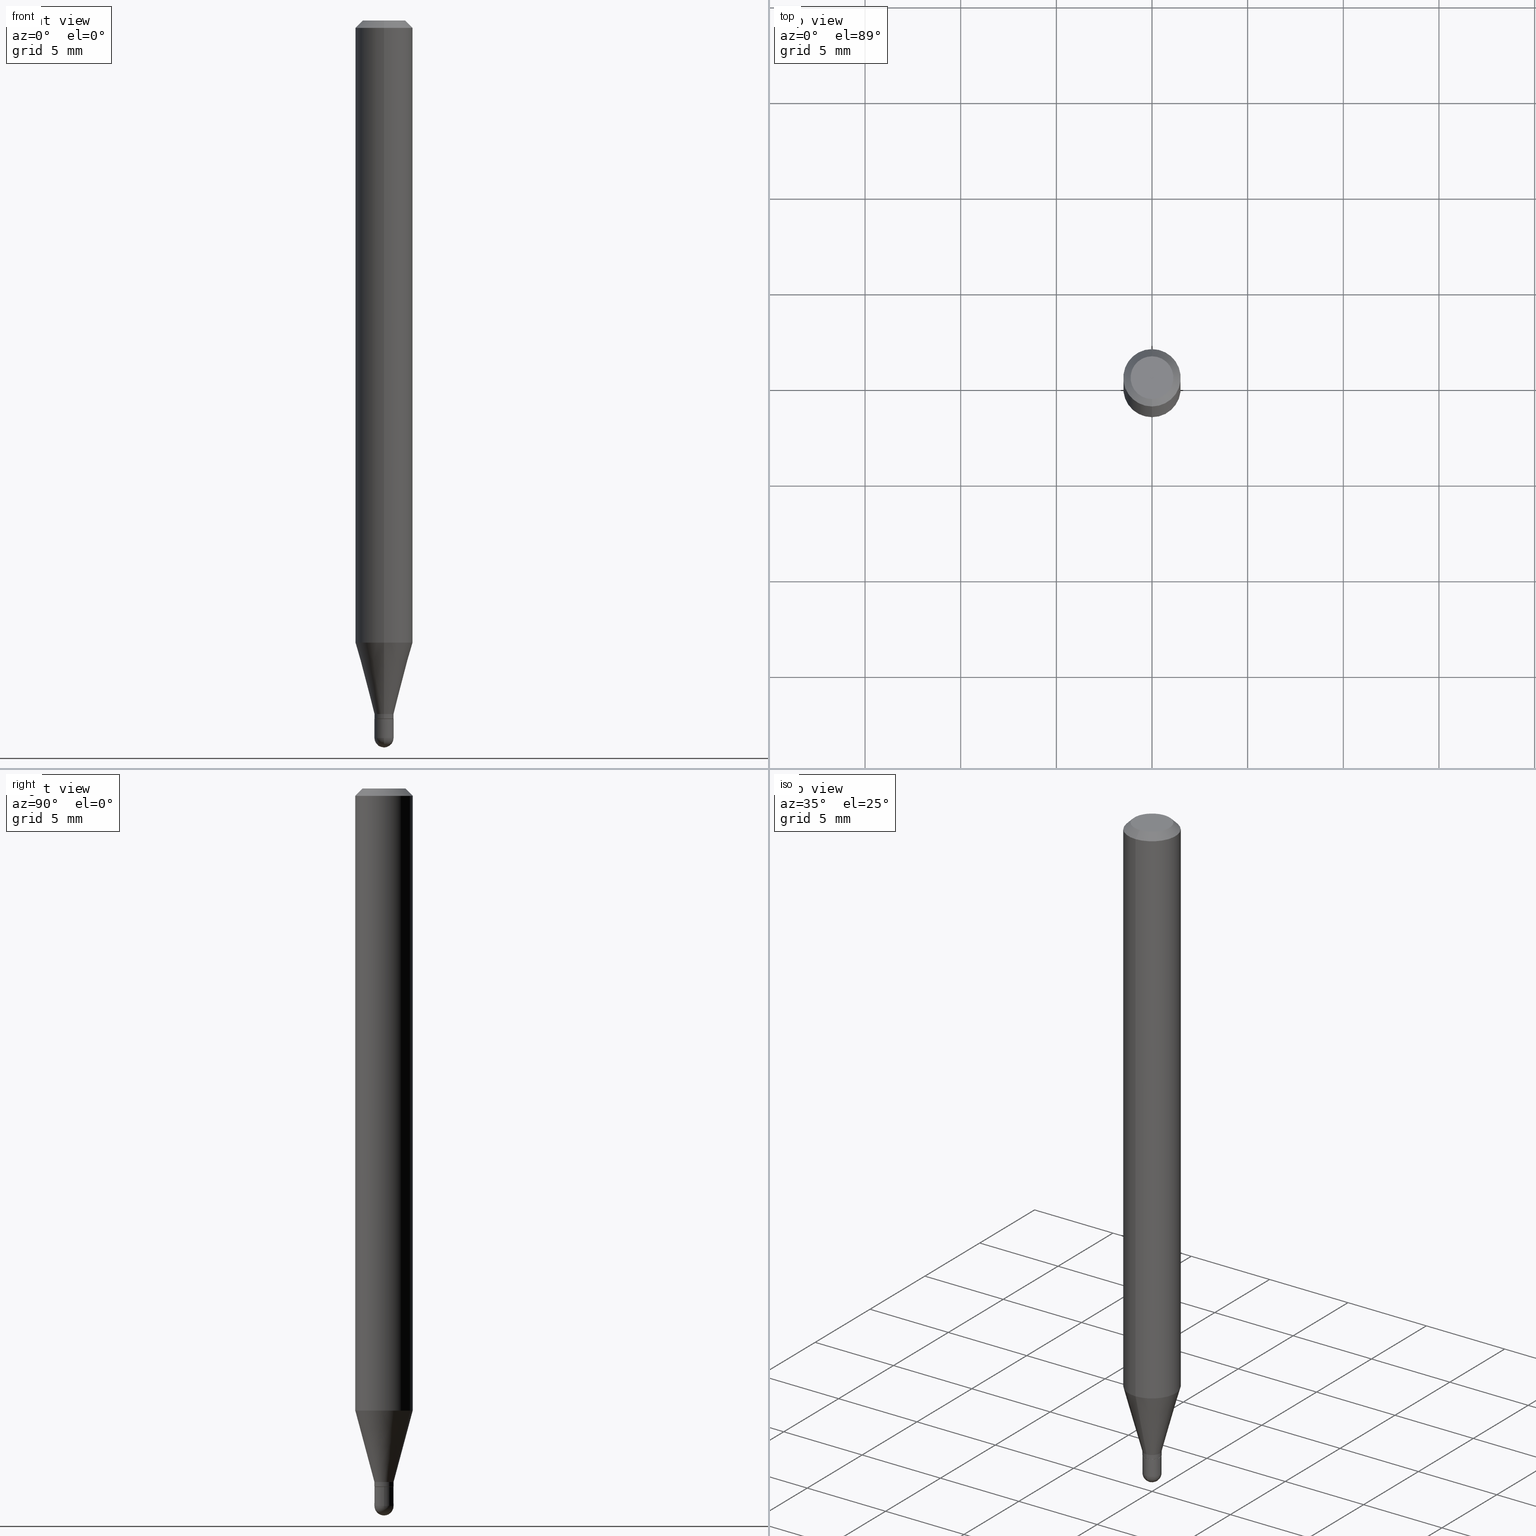
[diagram: canonical four-view strip — front | top / right | iso, engineering-drawing reading convention]
A machine part, canonical four-view strip (front | top / right | iso — engineering-drawing reading convention). The complete STEP part file that produces these views, byte-faithful:
ISO-10303-21;
HEADER;
FILE_DESCRIPTION (( 'STEP AP203' ),
    '1' );
FILE_NAME ('01905.STEP',
    '2024-03-07T19:42:53',
    ( '' ),
    ( '' ),
    'SwSTEP 2.0',
    'SolidWorks 2023',
    '' );
FILE_SCHEMA (( 'CONFIG_CONTROL_DESIGN' ));
ENDSEC;

DATA;
#1 = EDGE_LOOP ( 'NONE', ( #247, #274, #31, #37 ) ) ;
#2 = DIRECTION ( 'NONE',  ( 7.105427357601000281E-15, 1.000000000000000000, 0.000000000000000000 ) ) ;
#3 = PERSON_AND_ORGANIZATION ( #13, #121 ) ;
#4 = CARTESIAN_POINT ( 'NONE',  ( -1.375643647503839622E-16, -0.01970000000000490109, -1.427099999999999591 ) ) ;
#5 = ORIENTED_EDGE ( 'NONE', *, *, #262, .F. ) ;
#6 = SPHERICAL_SURFACE ( 'NONE', #258, 0.01969999999999989468 ) ;
#7 = CARTESIAN_POINT ( 'NONE',  ( 3.608805467862051881E-29, -5.157235602862340147E-15, -1.476399999999999935 ) ) ;
#8 = DATE_TIME_ROLE ( 'classification_date' ) ;
#9 = CARTESIAN_POINT ( 'NONE',  ( -1.375643647503830007E-16, -0.01970000000000510232, -1.476399999999999935 ) ) ;
#10 =( NAMED_UNIT ( * ) PLANE_ANGLE_UNIT ( ) SI_UNIT ( $, .RADIAN. ) );
#11 = EDGE_CURVE ( 'NONE', #199, #497, #327, .T. ) ;
#12 = FACE_OUTER_BOUND ( 'NONE', #194, .T. ) ;
#13 = PERSON ( 'UNSPECIFIED', 'UNSPECIFIED', 'UNSPECIFIED', ('UNSPECIFIED'), ('UNSPECIFIED'), ('UNSPECIFIED') ) ;
#14 = VECTOR ( 'NONE', #234, 39.37007874015748143 ) ;
#15 = DIRECTION ( 'NONE',  ( -2.445463937924498510E-29, 3.491488310469463520E-15, 1.000000000000000000 ) ) ;
#16 = ADVANCED_FACE ( 'NONE', ( #283 ), #227, .T. ) ;
#17 = CARTESIAN_POINT ( 'NONE',  ( 1.399769189447391362E-16, 0.01969999999999991896, -6.878231971624814427E-17 ) ) ;
#18 = PERSON_AND_ORGANIZATION_ROLE ( 'design_owner' ) ;
#19 = FACE_OUTER_BOUND ( 'NONE', #429, .T. ) ;
#20 = CC_DESIGN_PERSON_AND_ORGANIZATION_ASSIGNMENT ( #73, #173, ( #442 ) ) ;
#21 = FACE_OUTER_BOUND ( 'NONE', #356, .T. ) ;
#22 = CONICAL_SURFACE ( 'NONE', #355, 0.01969999999999991896, 0.2617993877991505736 ) ;
#23 = DIRECTION ( 'NONE',  ( -2.445468806185136597E-29, 3.491481338843145583E-15, 1.000000000000000000 ) ) ;
#24 = AXIS2_PLACEMENT_3D ( 'NONE', #377, #89, #178 ) ;
#25 = CALENDAR_DATE ( 2024, 7, 3 ) ;
#26 = FACE_OUTER_BOUND ( 'NONE', #499, .T. ) ;
#27 = CIRCLE ( 'NONE', #340, 0.01969999999999991896 ) ;
#28 = ORIENTED_EDGE ( 'NONE', *, *, #304, .F. ) ;
#29 = ORIENTED_EDGE ( 'NONE', *, *, #102, .T. ) ;
#30 = ORIENTED_EDGE ( 'NONE', *, *, #32, .F. ) ;
#31 = ORIENTED_EDGE ( 'NONE', *, *, #157, .T. ) ;
#32 = EDGE_CURVE ( 'NONE', #510, #403, #85, .T. ) ;
#33 = ORIENTED_EDGE ( 'NONE', *, *, #318, .T. ) ;
#34 = AXIS2_PLACEMENT_3D ( 'NONE', #135, #128, #448 ) ;
#35 = ORIENTED_EDGE ( 'NONE', *, *, #218, .T. ) ;
#36 = EDGE_LOOP ( 'NONE', ( #465, #29, #381, #28 ) ) ;
#37 = ORIENTED_EDGE ( 'NONE', *, *, #162, .F. ) ;
#38 = DIRECTION ( 'NONE',  ( -2.445468806185136877E-29, 3.491481338843145188E-15, 1.000000000000000000 ) ) ;
#39 = ADVANCED_FACE ( 'NONE', ( #160 ), #143, .T. ) ;
#40 = ORIENTED_EDGE ( 'NONE', *, *, #11, .F. ) ;
#41 = DATE_AND_TIME ( #370, #468 ) ;
#42 = DIRECTION ( 'NONE',  ( -6.982962677686265922E-15, -1.000000000000000000, 0.000000000000000000 ) ) ;
#43 = AXIS2_PLACEMENT_3D ( 'NONE', #487, #326, #88 ) ;
#44 = COORDINATED_UNIVERSAL_TIME_OFFSET ( 5, 0, .BEHIND. ) ;
#45 = CARTESIAN_POINT ( 'NONE',  ( 3.130790046417451577E-29, -4.469956264772435367E-15, -1.280243800722164815 ) ) ;
#46 = CARTESIAN_POINT ( 'NONE',  ( -0.01969999999999999876, -4.946063947348069559E-15, -1.476399999999999935 ) ) ;
#47 = CARTESIAN_POINT ( 'NONE',  ( 3.668195906886753511E-31, -5.237232465704203883E-17, -0.01500000000000002373 ) ) ;
#48 = ADVANCED_FACE ( 'NONE', ( #299 ), #449, .T. ) ;
#49 =( CONVERSION_BASED_UNIT ( 'INCH', #410 ) LENGTH_UNIT ( ) NAMED_UNIT ( #224 ) );
#50 = PERSON_AND_ORGANIZATION ( #13, #121 ) ;
#51 = DIRECTION ( 'NONE',  ( 1.000000000000000000, -6.982962677686265922E-15, 4.876176775795935232E-29 ) ) ;
#52 = AXIS2_PLACEMENT_3D ( 'NONE', #284, #364, #86 ) ;
#53 = VECTOR ( 'NONE', #94, 39.37007874015748143 ) ;
#54 = CC_DESIGN_PERSON_AND_ORGANIZATION_ASSIGNMENT ( #83, #186, ( #230 ) ) ;
#55 = LINE ( 'NONE', #174, #414 ) ;
#56 = CARTESIAN_POINT ( 'NONE',  ( 3.610490145451735091E-29, -5.154823048668019264E-15, -1.476399999999999935 ) ) ;
#57 = DIRECTION ( 'NONE',  ( 2.445463937924498510E-29, -3.491488310469463520E-15, -1.000000000000000000 ) ) ;
#58 = CARTESIAN_POINT ( 'NONE',  ( 3.668195906886753511E-31, -5.237232465704203883E-17, -0.01500000000000002373 ) ) ;
#59 = AXIS2_PLACEMENT_3D ( 'NONE', #257, #342, #488 ) ;
#60 = PLANE ( 'NONE',  #97 ) ;
#61 = ORIENTED_EDGE ( 'NONE', *, *, #147, .F. ) ;
#62 = CARTESIAN_POINT ( 'NONE',  ( 3.075995059520799729E-16, 0.04404999999999999888, -1.657310279668033086E-16 ) ) ;
#63 = EDGE_CURVE ( 'NONE', #497, #393, #344, .T. ) ;
#64 = VERTEX_POINT ( 'NONE', #138 ) ;
#65 = ORIENTED_EDGE ( 'NONE', *, *, #90, .F. ) ;
#66 = SECURITY_CLASSIFICATION ( '', '', #366 ) ;
#67 = ORIENTED_EDGE ( 'NONE', *, *, #343, .T. ) ;
#68 = PRODUCT_DEFINITION_SHAPE ( 'NONE', 'NONE',  #230 ) ;
#69 = VECTOR ( 'NONE', #91, 39.37007874015748143 ) ;
#70 = LOCAL_TIME ( 14, 42, 53.00000000000000000, #504 ) ;
#71 = DATE_AND_TIME ( #288, #70 ) ;
#72 = DIRECTION ( 'NONE',  ( 1.000000000000000000, -7.105427357601001070E-15, 4.926315508542082329E-29 ) ) ;
#73 = PERSON_AND_ORGANIZATION ( #13, #121 ) ;
#74 = CARTESIAN_POINT ( 'NONE',  ( 0.000000000000000000, 0.000000000000000000, 0.000000000000000000 ) ) ;
#75 = VERTEX_POINT ( 'NONE', #231 ) ;
#76 = CARTESIAN_POINT ( 'NONE',  ( 1.399769189447754238E-16, 0.01969999999999479112, -1.476399999999999935 ) ) ;
#77 = COORDINATED_UNIVERSAL_TIME_OFFSET ( 5, 0, .BEHIND. ) ;
#78 = CARTESIAN_POINT ( 'NONE',  ( 3.130790046417451577E-29, -4.469956264772435367E-15, -1.280243800722164815 ) ) ;
#79 = ADVANCED_FACE ( 'NONE', ( #303 ), #266, .T. ) ;
#80 = CONICAL_SURFACE ( 'NONE', #175, 0.05904999999999999832, 0.7853981633974483900 ) ;
#81 =( LENGTH_UNIT ( ) NAMED_UNIT ( * ) SI_UNIT ( $, .METRE. ) );
#82 = DIRECTION ( 'NONE',  ( -2.445463937924498510E-29, 3.491488310469463520E-15, 1.000000000000000000 ) ) ;
#83 = PERSON_AND_ORGANIZATION ( #13, #121 ) ;
#84 = ADVANCED_FACE ( 'NONE', ( #21 ), #60, .F. ) ;
#85 = LINE ( 'NONE', #17, #401 ) ;
#86 = DIRECTION ( 'NONE',  ( -6.982962677686266711E-15, -1.000000000000000000, 0.000000000000000000 ) ) ;
#87 = DIRECTION ( 'NONE',  ( -2.445463937924498510E-29, 3.491488310469463520E-15, 1.000000000000000000 ) ) ;
#88 = DIRECTION ( 'NONE',  ( -6.982962677686266711E-15, -1.000000000000000000, 0.000000000000000000 ) ) ;
#89 = DIRECTION ( 'NONE',  ( -2.445468806185136597E-29, 3.491481338843145583E-15, 1.000000000000000000 ) ) ;
#90 = EDGE_CURVE ( 'NONE', #155, #118, #493, .T. ) ;
#91 = DIRECTION ( 'NONE',  ( -4.851104656540964275E-15, -0.7071067811865500152, -0.7071067811865450192 ) ) ;
#92 = SHAPE_DEFINITION_REPRESENTATION ( #68, #190 ) ;
#93 = DIRECTION ( 'NONE',  ( -2.445463937924498510E-29, 3.491488310469463520E-15, 1.000000000000000000 ) ) ;
#94 = DIRECTION ( 'NONE',  ( -2.445468806185136877E-29, 3.491481338843145188E-15, 1.000000000000000000 ) ) ;
#95 = AXIS2_PLACEMENT_3D ( 'NONE', #161, #360, #320 ) ;
#96 = APPROVAL_ROLE ( '' ) ;
#97 = AXIS2_PLACEMENT_3D ( 'NONE', #111, #424, #298 ) ;
#98 = DIRECTION ( 'NONE',  ( -2.445463937924498230E-29, 3.491488310469463914E-15, 1.000000000000000000 ) ) ;
#99 = DIRECTION ( 'NONE',  ( -2.445463937924498510E-29, 3.491488310469463520E-15, 1.000000000000000000 ) ) ;
#100 = DATE_AND_TIME ( #25, #132 ) ;
#101 = CARTESIAN_POINT ( 'NONE',  ( 1.399769189447740433E-16, 0.01969999999999494031, -1.427099999999999591 ) ) ;
#102 = EDGE_CURVE ( 'NONE', #282, #199, #480, .T. ) ;
#103 = CARTESIAN_POINT ( 'NONE',  ( -1.340728834115411522E-16, -0.01920000000000501514, -1.437000000000000055 ) ) ;
#104 = ADVANCED_FACE ( 'NONE', ( #345 ), #6, .T. ) ;
#105 = AXIS2_PLACEMENT_3D ( 'NONE', #411, #415, #222 ) ;
#106 = DIRECTION ( 'NONE',  ( 1.000000000000000000, 0.000000000000000000, 0.000000000000000000 ) ) ;
#107 = ORIENTED_EDGE ( 'NONE', *, *, #191, .F. ) ;
#108 = AXIS2_PLACEMENT_3D ( 'NONE', #139, #232, #106 ) ;
#109 = ADVANCED_FACE ( 'NONE', ( #141 ), #22, .T. ) ;
#110 = ORIENTED_EDGE ( 'NONE', *, *, #398, .F. ) ;
#111 = CARTESIAN_POINT ( 'NONE',  ( 1.375643647504545652E-16, 0.01969999999999498194, -1.437000000000000055 ) ) ;
#112 = APPROVAL ( #167, 'UNSPECIFIED' ) ;
#113 = AXIS2_PLACEMENT_3D ( 'NONE', #434, #437, #263 ) ;
#114 = ORIENTED_EDGE ( 'NONE', *, *, #402, .T. ) ;
#115 = PRODUCT ( '01905', '01905', '', ( #228 ) ) ;
#116 = ORIENTED_EDGE ( 'NONE', *, *, #63, .T. ) ;
#117 = LINE ( 'NONE', #368, #309 ) ;
#118 = VERTEX_POINT ( 'NONE', #477 ) ;
#119 = ORIENTED_EDGE ( 'NONE', *, *, #248, .F. ) ;
#120 = VECTOR ( 'NONE', #182, 39.37007874015748143 ) ;
#121 = ORGANIZATION ( 'UNSPECIFIED', 'UNSPECIFIED', '' ) ;
#122 = ADVANCED_FACE ( 'NONE', ( #484 ), #217, .T. ) ;
#123 = VERTEX_POINT ( 'NONE', #273 ) ;
#124 = FACE_OUTER_BOUND ( 'NONE', #208, .T. ) ;
#125 = DIRECTION ( 'NONE',  ( -6.982962677686265922E-15, -1.000000000000000000, 3.505890868245046092E-15 ) ) ;
#126 = DIRECTION ( 'NONE',  ( -2.445463937924498510E-29, 3.491488310469463520E-15, 1.000000000000000000 ) ) ;
#127 = DIRECTION ( 'NONE',  ( -2.445463937924498510E-29, 3.491488310469463520E-15, 1.000000000000000000 ) ) ;
#128 = DIRECTION ( 'NONE',  ( -2.445463937924498510E-29, 3.491488310469463520E-15, 1.000000000000000000 ) ) ;
#129 = DIRECTION ( 'NONE',  ( -6.982962677686265922E-15, -1.000000000000000000, 0.000000000000000000 ) ) ;
#130 = DIRECTION ( 'NONE',  ( -6.982962677686265922E-15, -1.000000000000000000, 4.626330217890369336E-15 ) ) ;
#131 = VECTOR ( 'NONE', #140, 39.37007874015748143 ) ;
#132 = LOCAL_TIME ( 14, 42, 53.00000000000000000, #142 ) ;
#133 = AXIS2_PLACEMENT_3D ( 'NONE', #483, #450, #168 ) ;
#134 = DIRECTION ( 'NONE',  ( -2.445468806185136597E-29, 3.491481338843145583E-15, 1.000000000000000000 ) ) ;
#135 = CARTESIAN_POINT ( 'NONE',  ( 0.000000000000000000, 0.000000000000000000, 0.000000000000000000 ) ) ;
#136 = APPROVAL ( #408, 'UNSPECIFIED' ) ;
#137 = DIRECTION ( 'NONE',  ( -2.445463937924498510E-29, 3.491488310469463520E-15, 1.000000000000000000 ) ) ;
#138 = CARTESIAN_POINT ( 'NONE',  ( 4.195754854663702092E-16, 0.05904999999999550886, -1.280243800722165037 ) ) ;
#139 = CARTESIAN_POINT ( 'NONE',  ( 0.000000000000000000, 0.000000000000000000, 0.000000000000000000 ) ) ;
#140 = DIRECTION ( 'NONE',  ( -2.445463937924498230E-29, 3.491488310469463914E-15, 1.000000000000000000 ) ) ;
#141 = FACE_OUTER_BOUND ( 'NONE', #315, .T. ) ;
#142 = COORDINATED_UNIVERSAL_TIME_OFFSET ( 5, 0, .BEHIND. ) ;
#143 = CONICAL_SURFACE ( 'NONE', #426, 0.05904999999999999832, 0.7853981633974483900 ) ;
#144 = DIRECTION ( 'NONE',  ( -6.982962677686266711E-15, -1.000000000000000000, 0.000000000000000000 ) ) ;
#145 = APPLICATION_CONTEXT ( 'configuration controlled 3d designs of mechanical parts and assemblies' ) ;
#146 = PERSON_AND_ORGANIZATION ( #13, #121 ) ;
#147 = EDGE_CURVE ( 'NONE', #118, #389, #496, .T. ) ;
#148 = DESIGN_CONTEXT ( 'detailed design', #145, 'design' ) ;
#149 = AXIS2_PLACEMENT_3D ( 'NONE', #153, #269, #349 ) ;
#150 = EDGE_LOOP ( 'NONE', ( #354, #388, #433, #40 ) ) ;
#151 = CC_DESIGN_APPROVAL ( #136, ( #66 ) ) ;
#152 = CARTESIAN_POINT ( 'NONE',  ( -1.375643647504188693E-16, -0.01969999999999991896, 6.878231971624814427E-17 ) ) ;
#153 = CARTESIAN_POINT ( 'NONE',  ( 3.668195906886753511E-31, -5.237232465704203883E-17, -0.01500000000000002373 ) ) ;
#154 = DIRECTION ( 'NONE',  ( -6.982962677686265922E-15, -1.000000000000000000, 3.491488310469463520E-15 ) ) ;
#155 = VERTEX_POINT ( 'NONE', #419 ) ;
#156 = CIRCLE ( 'NONE', #441, 0.01969999999999991896 ) ;
#157 = EDGE_CURVE ( 'NONE', #466, #169, #265, .T. ) ;
#158 = CC_DESIGN_SECURITY_CLASSIFICATION ( #66, ( #442 ) ) ;
#159 = CIRCLE ( 'NONE', #223, 0.04404999999999999888 ) ;
#160 = FACE_OUTER_BOUND ( 'NONE', #1, .T. ) ;
#161 = CARTESIAN_POINT ( 'NONE',  ( 3.514138674488041056E-29, -5.017258683917600838E-15, -1.437000000000000055 ) ) ;
#162 = EDGE_CURVE ( 'NONE', #75, #169, #239, .T. ) ;
#163 = LINE ( 'NONE', #334, #69 ) ;
#164 = LOCAL_TIME ( 14, 42, 53.00000000000000000, #301 ) ;
#165 = ORIENTED_EDGE ( 'NONE', *, *, #312, .T. ) ;
#166 = CARTESIAN_POINT ( 'NONE',  ( -1.375643647503839622E-16, -0.01970000000000490109, -1.427099999999999591 ) ) ;
#167 = APPROVAL_STATUS ( 'not_yet_approved' ) ;
#168 = DIRECTION ( 'NONE',  ( 1.000000000000000000, -6.982962677686278543E-15, 0.000000000000000000 ) ) ;
#169 = VERTEX_POINT ( 'NONE', #251 ) ;
#170 = CARTESIAN_POINT ( 'NONE',  ( 3.608805467862051881E-29, -5.157235602862340147E-15, -1.476399999999999935 ) ) ;
#171 = CARTESIAN_POINT ( 'NONE',  ( -3.536586717851222218E-16, -0.04404999999999999888, 1.299381242949329746E-16 ) ) ;
#172 = CARTESIAN_POINT ( 'NONE',  ( 5.835350344210947069E-46, -8.331366984539649306E-32, -2.386193578124687290E-17 ) ) ;
#173 = PERSON_AND_ORGANIZATION_ROLE ( 'creator' ) ;
#174 = CARTESIAN_POINT ( 'NONE',  ( 1.364242052659743280E-16, 0.01919999999999497803, -1.437000000000000055 ) ) ;
#175 = AXIS2_PLACEMENT_3D ( 'NONE', #58, #57, #491 ) ;
#176 = DATE_AND_TIME ( #498, #164 ) ;
#177 = CARTESIAN_POINT ( 'NONE',  ( 3.668195906886753511E-31, -5.237232465704203883E-17, -0.01500000000000002373 ) ) ;
#178 = DIRECTION ( 'NONE',  ( 1.000000000000000000, -6.982962677686265922E-15, 4.876176775795935232E-29 ) ) ;
#179 = CARTESIAN_POINT ( 'NONE',  ( 3.489921585812051026E-29, -4.982702967870969874E-15, -1.427099999999999591 ) ) ;
#180 = CARTESIAN_POINT ( 'NONE',  ( 3.608805467862051881E-29, -5.157235602862340147E-15, -1.476399999999999935 ) ) ;
#181 = CC_DESIGN_PERSON_AND_ORGANIZATION_ASSIGNMENT ( #146, #18, ( #115 ) ) ;
#182 = DIRECTION ( 'NONE',  ( -4.937700262164674260E-15, -0.7071067811865632269, 0.7071067811865319186 ) ) ;
#183 = AXIS2_PLACEMENT_3D ( 'NONE', #78, #93, #338 ) ;
#184 = AXIS2_PLACEMENT_3D ( 'NONE', #56, #23, #226 ) ;
#185 = CARTESIAN_POINT ( 'NONE',  ( 2.797762022055723851E-16, 0.01969999999999494031, -1.427099999999999591 ) ) ;
#186 = PERSON_AND_ORGANIZATION_ROLE ( 'creator' ) ;
#187 = ORIENTED_EDGE ( 'NONE', *, *, #353, .F. ) ;
#188 = EDGE_CURVE ( 'NONE', #393, #123, #445, .T. ) ;
#189 = LINE ( 'NONE', #152, #400 ) ;
#190 = ADVANCED_BREP_SHAPE_REPRESENTATION ( '01905', ( #206, #202, #108 ), #225 ) ;
#191 = EDGE_CURVE ( 'NONE', #322, #466, #317, .T. ) ;
#192 = ORIENTED_EDGE ( 'NONE', *, *, #509, .F. ) ;
#193 = AXIS2_PLACEMENT_3D ( 'NONE', #62, #423, #307 ) ;
#194 = EDGE_LOOP ( 'NONE', ( #333, #394, #238, #494, #503 ) ) ;
#195 = LOCAL_TIME ( 14, 42, 53.00000000000000000, #77 ) ;
#196 = EDGE_LOOP ( 'NONE', ( #427, #114, #291, #119 ) ) ;
#197 = EDGE_CURVE ( 'NONE', #64, #322, #293, .T. ) ;
#198 = ORIENTED_EDGE ( 'NONE', *, *, #428, .F. ) ;
#199 = VERTEX_POINT ( 'NONE', #9 ) ;
#200 = ORIENTED_EDGE ( 'NONE', *, *, #390, .F. ) ;
#201 = AXIS2_PLACEMENT_3D ( 'NONE', #177, #472, #125 ) ;
#202 = MANIFOLD_SOLID_BREP ( 'Body-Move/Copy2[2]', #444 ) ;
#203 = AXIS2_PLACEMENT_3D ( 'NONE', #74, #264, #413 ) ;
#204 = ORIENTED_EDGE ( 'NONE', *, *, #188, .T. ) ;
#205 = EDGE_LOOP ( 'NONE', ( #279, #211, #319, #107 ) ) ;
#206 = MANIFOLD_SOLID_BREP ( 'Body-Move/Copy2[1]', #267 ) ;
#207 = EDGE_CURVE ( 'NONE', #322, #64, #430, .T. ) ;
#208 = EDGE_LOOP ( 'NONE', ( #417, #65 ) ) ;
#209 = CARTESIAN_POINT ( 'NONE',  ( 1.399769189447738214E-16, 0.01969999999999483623, -1.436500000000000110 ) ) ;
#210 = CC_DESIGN_DATE_AND_TIME_ASSIGNMENT ( #71, #213, ( #230 ) ) ;
#211 = ORIENTED_EDGE ( 'NONE', *, *, #398, .T. ) ;
#212 = DIRECTION ( 'NONE',  ( -2.445463937924497950E-29, 3.491488310469463914E-15, 1.000000000000000000 ) ) ;
#213 = DATE_TIME_ROLE ( 'creation_date' ) ;
#214 = CYLINDRICAL_SURFACE ( 'NONE', #314, 0.05904999999999999832 ) ;
#215 = PERSON_AND_ORGANIZATION ( #13, #121 ) ;
#216 = DIRECTION ( 'NONE',  ( 1.000000000000000000, -6.982962677686278543E-15, 0.000000000000000000 ) ) ;
#217 = CYLINDRICAL_SURFACE ( 'NONE', #34, 0.01969999999999991896 ) ;
#218 = EDGE_CURVE ( 'NONE', #155, #510, #55, .T. ) ;
#219 = APPROVAL_ROLE ( '' ) ;
#220 = DIRECTION ( 'NONE',  ( -2.445463937924498230E-29, 3.491488310469463914E-15, 1.000000000000000000 ) ) ;
#221 = DIRECTION ( 'NONE',  ( 2.445463937924498510E-29, -3.491488310469463520E-15, -1.000000000000000000 ) ) ;
#222 = DIRECTION ( 'NONE',  ( 1.000000000000000000, -6.982962677686278543E-15, 0.000000000000000000 ) ) ;
#223 = AXIS2_PLACEMENT_3D ( 'NONE', #172, #285, #253 ) ;
#224 = DIMENSIONAL_EXPONENTS ( 1.000000000000000000, 0.000000000000000000, 0.000000000000000000, 0.000000000000000000, 0.000000000000000000, 0.000000000000000000, 0.000000000000000000 ) ;
#225 =( GEOMETRIC_REPRESENTATION_CONTEXT ( 3 ) GLOBAL_UNCERTAINTY_ASSIGNED_CONTEXT ( ( #395 ) ) GLOBAL_UNIT_ASSIGNED_CONTEXT ( ( #49, #10, #486 ) ) REPRESENTATION_CONTEXT ( 'NONE', 'WORKASPACE' ) );
#226 = DIRECTION ( 'NONE',  ( 1.000000000000000000, -6.982962677686278543E-15, 0.000000000000000000 ) ) ;
#227 = CONICAL_SURFACE ( 'NONE', #365, 0.01919999999999999485, 0.7853981633974739252 ) ;
#228 = MECHANICAL_CONTEXT ( 'NONE', #391, 'mechanical' ) ;
#229 = CARTESIAN_POINT ( 'NONE',  ( 3.610490145451735091E-29, -5.154823048668019264E-15, -1.476399999999999935 ) ) ;
#230 = PRODUCT_DEFINITION ( 'UNKNOWN', '', #442, #148 ) ;
#231 = CARTESIAN_POINT ( 'NONE',  ( 3.599717260347271507E-16, 0.04404999999999999888, -1.776619958574267204E-16 ) ) ;
#232 = DIRECTION ( 'NONE',  ( 0.000000000000000000, 0.000000000000000000, 1.000000000000000000 ) ) ;
#233 = APPROVAL_ROLE ( '' ) ;
#234 = DIRECTION ( 'NONE',  ( 1.839019923739602287E-15, 0.2588190451025252359, 0.9659258262890670910 ) ) ;
#235 = AXIS2_PLACEMENT_3D ( 'NONE', #179, #137, #409 ) ;
#236 = ORIENTED_EDGE ( 'NONE', *, *, #353, .T. ) ;
#237 = AXIS2_PLACEMENT_3D ( 'NONE', #45, #82, #130 ) ;
#238 = ORIENTED_EDGE ( 'NONE', *, *, #188, .F. ) ;
#239 = LINE ( 'NONE', #392, #385 ) ;
#240 = ORIENTED_EDGE ( 'NONE', *, *, #246, .T. ) ;
#241 = ORIENTED_EDGE ( 'NONE', *, *, #162, .T. ) ;
#242 = EDGE_LOOP ( 'NONE', ( #30, #165, #328, #187 ) ) ;
#243 = CC_DESIGN_APPROVAL ( #512, ( #230 ) ) ;
#244 = VERTEX_POINT ( 'NONE', #46 ) ;
#245 = ORIENTED_EDGE ( 'NONE', *, *, #506, .F. ) ;
#246 = EDGE_CURVE ( 'NONE', #244, #199, #456, .T. ) ;
#247 = ORIENTED_EDGE ( 'NONE', *, *, #318, .F. ) ;
#248 = EDGE_CURVE ( 'NONE', #476, #322, #335, .T. ) ;
#249 = ORIENTED_EDGE ( 'NONE', *, *, #329, .F. ) ;
#250 = AXIS2_PLACEMENT_3D ( 'NONE', #367, #439, #51 ) ;
#251 = CARTESIAN_POINT ( 'NONE',  ( 4.195754854663707023E-16, 0.05904999999999995669, -0.01500000000000023016 ) ) ;
#252 = DIRECTION ( 'NONE',  ( -2.445463937924498510E-29, 3.491488310469463520E-15, 1.000000000000000000 ) ) ;
#253 = DIRECTION ( 'NONE',  ( -6.982962677686265133E-15, -1.000000000000000000, 3.491488310469463125E-15 ) ) ;
#254 = CARTESIAN_POINT ( 'NONE',  ( 3.489921585812051026E-29, -4.982702967870969874E-15, -1.427099999999999591 ) ) ;
#255 = AXIS2_PLACEMENT_3D ( 'NONE', #330, #126, #373 ) ;
#256 = DATE_AND_TIME ( #482, #195 ) ;
#257 = CARTESIAN_POINT ( 'NONE',  ( 3.514138674488041056E-29, -5.017258683917600838E-15, -1.437000000000000055 ) ) ;
#258 = AXIS2_PLACEMENT_3D ( 'NONE', #170, #261, #292 ) ;
#259 = DIRECTION ( 'NONE',  ( -1.807323732225332111E-15, -0.2588190451025184635, 0.9659258262890689783 ) ) ;
#260 = DIRECTION ( 'NONE',  ( -6.982962677686265133E-15, -1.000000000000000000, 3.491488310469463125E-15 ) ) ;
#261 = DIRECTION ( 'NONE',  ( 1.000000000000000000, -6.982962677686266711E-15, 4.883557194083112340E-29 ) ) ;
#262 = EDGE_CURVE ( 'NONE', #169, #466, #418, .T. ) ;
#263 = DIRECTION ( 'NONE',  ( -6.982962677686266711E-15, -1.000000000000000000, 0.000000000000000000 ) ) ;
#264 = DIRECTION ( 'NONE',  ( -2.445463937924498510E-29, 3.491488310469463520E-15, 1.000000000000000000 ) ) ;
#265 = CIRCLE ( 'NONE', #149, 0.05904999999999999832 ) ;
#266 = SPHERICAL_SURFACE ( 'NONE', #457, 0.01969999999999989468 ) ;
#267 = CLOSED_SHELL ( 'NONE', ( #339, #104, #84, #79, #48 ) ) ;
#268 = ORIENTED_EDGE ( 'NONE', *, *, #197, .T. ) ;
#269 = DIRECTION ( 'NONE',  ( -2.445463937924498510E-29, 3.491488310469463520E-15, 1.000000000000000000 ) ) ;
#270 = APPROVAL_STATUS ( 'not_yet_approved' ) ;
#271 = AXIS2_PLACEMENT_3D ( 'NONE', #474, #212, #471 ) ;
#272 = CARTESIAN_POINT ( 'NONE',  ( 4.195754854663390985E-16, 0.05904999999999999832, -2.061723847332218062E-16 ) ) ;
#273 = CARTESIAN_POINT ( 'NONE',  ( -0.01969999999999999876, -4.946063947348069559E-15, -1.437000000000000055 ) ) ;
#274 = ORIENTED_EDGE ( 'NONE', *, *, #431, .T. ) ;
#275 = ORIENTED_EDGE ( 'NONE', *, *, #506, .T. ) ;
#276 = ORIENTED_EDGE ( 'NONE', *, *, #11, .T. ) ;
#277 = CARTESIAN_POINT ( 'NONE',  ( -4.123439461173739834E-16, -0.05904999999999999832, 2.061723847332218062E-16 ) ) ;
#278 = EDGE_CURVE ( 'NONE', #497, #459, #421, .T. ) ;
#279 = ORIENTED_EDGE ( 'NONE', *, *, #207, .T. ) ;
#280 = ADVANCED_FACE ( 'NONE', ( #436 ), #289, .T. ) ;
#281 = CIRCLE ( 'NONE', #59, 0.01969999999999999876 ) ;
#282 = VERTEX_POINT ( 'NONE', #378 ) ;
#283 = FACE_OUTER_BOUND ( 'NONE', #469, .T. ) ;
#284 = CARTESIAN_POINT ( 'NONE',  ( 3.514131678797503649E-29, -5.017268702144619162E-15, -1.437000000000000055 ) ) ;
#285 = DIRECTION ( 'NONE',  ( -2.445463937924498510E-29, 3.491488310469463520E-15, 1.000000000000000000 ) ) ;
#286 = ORIENTED_EDGE ( 'NONE', *, *, #90, .T. ) ;
#287 = CARTESIAN_POINT ( 'NONE',  ( -4.123439461173736383E-16, -0.05905000000000005383, -0.01499999999999981730 ) ) ;
#288 = CALENDAR_DATE ( 2024, 7, 3 ) ;
#289 = CYLINDRICAL_SURFACE ( 'NONE', #203, 0.01969999999999991896 ) ;
#290 = PRODUCT_RELATED_PRODUCT_CATEGORY ( 'detail', '', ( #115 ) ) ;
#291 = ORIENTED_EDGE ( 'NONE', *, *, #207, .F. ) ;
#292 = DIRECTION ( 'NONE',  ( -6.982962677686266711E-15, -1.000000000000000000, 0.000000000000000000 ) ) ;
#293 = CIRCLE ( 'NONE', #183, 0.05904999999999999832 ) ;
#294 = CARTESIAN_POINT ( 'NONE',  ( 3.489921585812051026E-29, -4.982702967870969874E-15, -1.427099999999999591 ) ) ;
#295 = CC_DESIGN_PERSON_AND_ORGANIZATION_ASSIGNMENT ( #3, #412, ( #66 ) ) ;
#296 = CIRCLE ( 'NONE', #359, 0.04404999999999999888 ) ;
#297 = DIRECTION ( 'NONE',  ( -6.982962677686265922E-15, -1.000000000000000000, 3.491488310469463520E-15 ) ) ;
#298 = DIRECTION ( 'NONE',  ( -1.000000000000000000, 6.982962677686265922E-15, -4.876176775795935793E-29 ) ) ;
#299 = FACE_OUTER_BOUND ( 'NONE', #363, .T. ) ;
#300 = APPLICATION_PROTOCOL_DEFINITION ( 'international standard', 'config_control_design', 1994, #391 ) ;
#301 = COORDINATED_UNIVERSAL_TIME_OFFSET ( 5, 0, .BEHIND. ) ;
#302 = FACE_OUTER_BOUND ( 'NONE', #432, .T. ) ;
#303 = FACE_OUTER_BOUND ( 'NONE', #36, .T. ) ;
#304 = EDGE_CURVE ( 'NONE', #459, #244, #462, .T. ) ;
#305 = PERSON_AND_ORGANIZATION ( #13, #121 ) ;
#306 = ORIENTED_EDGE ( 'NONE', *, *, #248, .T. ) ;
#307 = DIRECTION ( 'NONE',  ( 6.982962677686265922E-15, 1.000000000000000000, -3.491488310469463914E-15 ) ) ;
#308 = ORIENTED_EDGE ( 'NONE', *, *, #218, .F. ) ;
#309 = VECTOR ( 'NONE', #38, 39.37007874015748143 ) ;
#310 = ORIENTED_EDGE ( 'NONE', *, *, #431, .F. ) ;
#311 = ADVANCED_FACE ( 'NONE', ( #19 ), #214, .T. ) ;
#312 = EDGE_CURVE ( 'NONE', #510, #389, #156, .T. ) ;
#313 = CC_DESIGN_DATE_AND_TIME_ASSIGNMENT ( #256, #8, ( #66 ) ) ;
#314 = AXIS2_PLACEMENT_3D ( 'NONE', #332, #15, #297 ) ;
#315 = EDGE_LOOP ( 'NONE', ( #464, #236, #306, #508 ) ) ;
#316 = VECTOR ( 'NONE', #220, 39.37007874015748143 ) ;
#317 = LINE ( 'NONE', #277, #316 ) ;
#318 = EDGE_CURVE ( 'NONE', #505, #75, #159, .T. ) ;
#319 = ORIENTED_EDGE ( 'NONE', *, *, #157, .F. ) ;
#320 = DIRECTION ( 'NONE',  ( 1.000000000000000000, -6.982962677686278543E-15, 0.000000000000000000 ) ) ;
#321 = ADVANCED_FACE ( 'NONE', ( #447 ), #507, .T. ) ;
#322 = VERTEX_POINT ( 'NONE', #446 ) ;
#323 = CARTESIAN_POINT ( 'NONE',  ( 3.514131678797503649E-29, -5.017268702144619162E-15, -1.437000000000000055 ) ) ;
#324 = CIRCLE ( 'NONE', #113, 0.01919999999999999485 ) ;
#325 = FACE_OUTER_BOUND ( 'NONE', #425, .T. ) ;
#326 = DIRECTION ( 'NONE',  ( -1.000000000000000000, 6.982962677686265922E-15, -4.883557194083112340E-29 ) ) ;
#327 = CIRCLE ( 'NONE', #184, 0.01969999999999999876 ) ;
#328 = ORIENTED_EDGE ( 'NONE', *, *, #390, .T. ) ;
#329 = EDGE_CURVE ( 'NONE', #75, #505, #296, .T. ) ;
#330 = CARTESIAN_POINT ( 'NONE',  ( 3.512908946828542510E-29, -5.015522957989384612E-15, -1.436500000000000110 ) ) ;
#331 = APPROVAL_DATE_TIME ( #41, #112 ) ;
#332 = CARTESIAN_POINT ( 'NONE',  ( 0.000000000000000000, 0.000000000000000000, 0.000000000000000000 ) ) ;
#333 = ORIENTED_EDGE ( 'NONE', *, *, #304, .T. ) ;
#334 = CARTESIAN_POINT ( 'NONE',  ( -4.051124067684085231E-16, -0.05905000000000005383, -0.01499999999999981730 ) ) ;
#335 = LINE ( 'NONE', #4, #383 ) ;
#336 = DIRECTION ( 'NONE',  ( -6.982962677686266711E-15, -1.000000000000000000, 0.000000000000000000 ) ) ;
#337 = AXIS2_PLACEMENT_3D ( 'NONE', #229, #134, #216 ) ;
#338 = DIRECTION ( 'NONE',  ( -6.982962677686265922E-15, -1.000000000000000000, 4.626330217890369336E-15 ) ) ;
#339 = ADVANCED_FACE ( 'NONE', ( #12 ), #375, .T. ) ;
#340 = AXIS2_PLACEMENT_3D ( 'NONE', #254, #478, #129 ) ;
#341 = DIRECTION ( 'NONE',  ( -6.982962677686265922E-15, -1.000000000000000000, 0.000000000000000000 ) ) ;
#342 = DIRECTION ( 'NONE',  ( -2.445468806185136597E-29, 3.491481338843145583E-15, 1.000000000000000000 ) ) ;
#343 = EDGE_CURVE ( 'NONE', #123, #393, #281, .T. ) ;
#344 = LINE ( 'NONE', #490, #53 ) ;
#345 = FACE_OUTER_BOUND ( 'NONE', #150, .T. ) ;
#346 = APPROVAL_DATE_TIME ( #100, #512 ) ;
#347 = APPLICATION_PROTOCOL_DEFINITION ( 'international standard', 'config_control_design', 1994, #145 ) ;
#348 = CIRCLE ( 'NONE', #467, 0.01969999999999989468 ) ;
#349 = DIRECTION ( 'NONE',  ( -6.982962677686265922E-15, -1.000000000000000000, 3.505890868245046092E-15 ) ) ;
#350 = CYLINDRICAL_SURFACE ( 'NONE', #357, 0.05904999999999999832 ) ;
#351 = ORIENTED_EDGE ( 'NONE', *, *, #147, .T. ) ;
#352 = DIRECTION ( 'NONE',  ( -2.445463937924498510E-29, 3.491488310469463520E-15, 1.000000000000000000 ) ) ;
#353 = EDGE_CURVE ( 'NONE', #403, #476, #481, .T. ) ;
#354 = ORIENTED_EDGE ( 'NONE', *, *, #102, .F. ) ;
#355 = AXIS2_PLACEMENT_3D ( 'NONE', #451, #99, #341 ) ;
#356 = EDGE_LOOP ( 'NONE', ( #204, #67 ) ) ;
#357 = AXIS2_PLACEMENT_3D ( 'NONE', #495, #352, #154 ) ;
#358 = EDGE_LOOP ( 'NONE', ( #275, #502, #192, #200 ) ) ;
#359 = AXIS2_PLACEMENT_3D ( 'NONE', #369, #87, #260 ) ;
#360 = DIRECTION ( 'NONE',  ( -2.445468806185136597E-29, 3.491481338843145583E-15, 1.000000000000000000 ) ) ;
#361 = ORIENTED_EDGE ( 'NONE', *, *, #329, .T. ) ;
#362 = ORIENTED_EDGE ( 'NONE', *, *, #191, .T. ) ;
#363 = EDGE_LOOP ( 'NONE', ( #198, #240, #276, #116, #399 ) ) ;
#364 = DIRECTION ( 'NONE',  ( -2.445463937924498510E-29, 3.491488310469463520E-15, 1.000000000000000000 ) ) ;
#365 = AXIS2_PLACEMENT_3D ( 'NONE', #323, #511, #470 ) ;
#366 = SECURITY_CLASSIFICATION_LEVEL ( 'unclassified' ) ;
#367 = CARTESIAN_POINT ( 'NONE',  ( 0.000000000000000000, 0.000000000000000000, 0.000000000000000000 ) ) ;
#368 = CARTESIAN_POINT ( 'NONE',  ( -0.01969999999999999876, 1.399769189447397278E-16, -9.690302127802162501E-31 ) ) ;
#369 = CARTESIAN_POINT ( 'NONE',  ( 5.835350344210947069E-46, -8.331366984539649306E-32, -2.386193578124687290E-17 ) ) ;
#370 = CALENDAR_DATE ( 2024, 7, 3 ) ;
#371 = DIRECTION ( 'NONE',  ( -6.982962677686265922E-15, -1.000000000000000000, 0.000000000000000000 ) ) ;
#372 = DIRECTION ( 'NONE',  ( -2.445463937924498230E-29, 3.491488310469463914E-15, 1.000000000000000000 ) ) ;
#373 = DIRECTION ( 'NONE',  ( -6.982962677686265922E-15, -1.000000000000000000, 0.000000000000000000 ) ) ;
#374 = CONICAL_SURFACE ( 'NONE', #52, 0.01919999999999999485, 0.7853981633974739252 ) ;
#375 = CYLINDRICAL_SURFACE ( 'NONE', #250, 0.01969999999999999876 ) ;
#376 = CC_DESIGN_APPROVAL ( #112, ( #442 ) ) ;
#377 = CARTESIAN_POINT ( 'NONE',  ( 0.000000000000000000, 0.000000000000000000, 0.000000000000000000 ) ) ;
#378 = CARTESIAN_POINT ( 'NONE',  ( 3.656138864549057573E-29, -5.227224062334710196E-15, -1.496099999999999541 ) ) ;
#379 = ADVANCED_FACE ( 'NONE', ( #302 ), #380, .F. ) ;
#380 = PLANE ( 'NONE',  #193 ) ;
#381 = ORIENTED_EDGE ( 'NONE', *, *, #246, .F. ) ;
#382 = CARTESIAN_POINT ( 'NONE',  ( 0.01969999999999999876, -5.154823048668020053E-15, -1.437000000000000055 ) ) ;
#383 = VECTOR ( 'NONE', #259, 39.37007874015748854 ) ;
#384 = APPROVAL_PERSON_ORGANIZATION ( #305, #512, #96 ) ;
#385 = VECTOR ( 'NONE', #397, 39.37007874015748143 ) ;
#386 = ORIENTED_EDGE ( 'NONE', *, *, #262, .T. ) ;
#387 = FACE_OUTER_BOUND ( 'NONE', #205, .T. ) ;
#388 = ORIENTED_EDGE ( 'NONE', *, *, #461, .T. ) ;
#389 = VERTEX_POINT ( 'NONE', #500 ) ;
#390 = EDGE_CURVE ( 'NONE', #389, #476, #189, .T. ) ;
#391 = APPLICATION_CONTEXT ( 'configuration controlled 3d designs of mechanical parts and assemblies' ) ;
#392 = CARTESIAN_POINT ( 'NONE',  ( 4.123439461173743285E-16, 0.05904999999999994975, -0.01500000000000023016 ) ) ;
#393 = VERTEX_POINT ( 'NONE', #382 ) ;
#394 = ORIENTED_EDGE ( 'NONE', *, *, #428, .T. ) ;
#395 = UNCERTAINTY_MEASURE_WITH_UNIT (LENGTH_MEASURE( 1.000000000000000082E-05 ), #49, 'distance_accuracy_value', 'NONE');
#396 = ADVANCED_FACE ( 'NONE', ( #26 ), #80, .T. ) ;
#397 = DIRECTION ( 'NONE',  ( 4.937700262164548042E-15, 0.7071067811865451302, -0.7071067811865499042 ) ) ;
#398 = EDGE_CURVE ( 'NONE', #64, #169, #458, .T. ) ;
#399 = ORIENTED_EDGE ( 'NONE', *, *, #343, .F. ) ;
#400 = VECTOR ( 'NONE', #98, 39.37007874015748143 ) ;
#401 = VECTOR ( 'NONE', #372, 39.37007874015748143 ) ;
#402 = EDGE_CURVE ( 'NONE', #403, #64, #452, .T. ) ;
#403 = VERTEX_POINT ( 'NONE', #185 ) ;
#404 = PLANE ( 'NONE',  #271 ) ;
#405 = PERSON_AND_ORGANIZATION ( #13, #121 ) ;
#406 = DIRECTION ( 'NONE',  ( -2.445463937924498510E-29, 3.491488310469463520E-15, 1.000000000000000000 ) ) ;
#407 = CIRCLE ( 'NONE', #255, 0.01969999999999991896 ) ;
#408 = APPROVAL_STATUS ( 'not_yet_approved' ) ;
#409 = DIRECTION ( 'NONE',  ( -6.982962677686265922E-15, -1.000000000000000000, 0.000000000000000000 ) ) ;
#410 = LENGTH_MEASURE_WITH_UNIT ( LENGTH_MEASURE( 0.02539999999999999897 ), #81 );
#411 = CARTESIAN_POINT ( 'NONE',  ( 3.610490145451735091E-29, -5.154823048668019264E-15, -1.476399999999999935 ) ) ;
#412 = PERSON_AND_ORGANIZATION_ROLE ( 'classification_officer' ) ;
#413 = DIRECTION ( 'NONE',  ( -6.982962677686265922E-15, -1.000000000000000000, 3.491488310469463125E-15 ) ) ;
#414 = VECTOR ( 'NONE', #479, 39.37007874015748143 ) ;
#415 = DIRECTION ( 'NONE',  ( -2.445468806185136597E-29, 3.491481338843145583E-15, 1.000000000000000000 ) ) ;
#416 = APPROVAL_PERSON_ORGANIZATION ( #215, #112, #219 ) ;
#417 = ORIENTED_EDGE ( 'NONE', *, *, #489, .F. ) ;
#418 = CIRCLE ( 'NONE', #201, 0.05904999999999999832 ) ;
#419 = CARTESIAN_POINT ( 'NONE',  ( 1.382005621053742843E-16, 0.01919999999999497803, -1.437000000000000055 ) ) ;
#420 = ORIENTED_EDGE ( 'NONE', *, *, #489, .T. ) ;
#421 = CIRCLE ( 'NONE', #337, 0.01969999999999999876 ) ;
#422 = ADVANCED_FACE ( 'NONE', ( #387 ), #350, .T. ) ;
#423 = DIRECTION ( 'NONE',  ( 2.445463937924497950E-29, -3.491488310469463914E-15, -1.000000000000000000 ) ) ;
#424 = DIRECTION ( 'NONE',  ( 2.438088387897960049E-29, -3.491481338843145188E-15, -1.000000000000000000 ) ) ;
#425 = EDGE_LOOP ( 'NONE', ( #308, #286, #351, #473 ) ) ;
#426 = AXIS2_PLACEMENT_3D ( 'NONE', #47, #221, #485 ) ;
#427 = ORIENTED_EDGE ( 'NONE', *, *, #509, .T. ) ;
#428 = EDGE_CURVE ( 'NONE', #244, #123, #117, .T. ) ;
#429 = EDGE_LOOP ( 'NONE', ( #110, #268, #362, #5 ) ) ;
#430 = CIRCLE ( 'NONE', #237, 0.05904999999999999832 ) ;
#431 = EDGE_CURVE ( 'NONE', #505, #466, #163, .T. ) ;
#432 = EDGE_LOOP ( 'NONE', ( #361, #33 ) ) ;
#433 = ORIENTED_EDGE ( 'NONE', *, *, #278, .F. ) ;
#434 = CARTESIAN_POINT ( 'NONE',  ( 3.514131678797503649E-29, -5.017268702144619162E-15, -1.437000000000000055 ) ) ;
#435 = CC_DESIGN_PERSON_AND_ORGANIZATION_ASSIGNMENT ( #405, #438, ( #442 ) ) ;
#436 = FACE_OUTER_BOUND ( 'NONE', #358, .T. ) ;
#437 = DIRECTION ( 'NONE',  ( -2.445463937924498510E-29, 3.491488310469463520E-15, 1.000000000000000000 ) ) ;
#438 = PERSON_AND_ORGANIZATION_ROLE ( 'design_supplier' ) ;
#439 = DIRECTION ( 'NONE',  ( -2.445468806185136597E-29, 3.491481338843145583E-15, 1.000000000000000000 ) ) ;
#440 = CARTESIAN_POINT ( 'NONE',  ( 3.514131678797503649E-29, -5.017268702144619162E-15, -1.437000000000000055 ) ) ;
#441 = AXIS2_PLACEMENT_3D ( 'NONE', #475, #127, #371 ) ;
#442 = PRODUCT_DEFINITION_FORMATION_WITH_SPECIFIED_SOURCE ( 'ANY', '', #115, .NOT_KNOWN. ) ;
#443 = CARTESIAN_POINT ( 'NONE',  ( 0.01969999999999999876, -5.223605231043229660E-15, -1.476399999999999935 ) ) ;
#444 = CLOSED_SHELL ( 'NONE', ( #280, #16, #39, #422, #321, #109, #311, #396, #379, #454, #460, #122 ) ) ;
#445 = CIRCLE ( 'NONE', #95, 0.01969999999999999876 ) ;
#446 = CARTESIAN_POINT ( 'NONE',  ( -4.123439461173428234E-16, -0.05905000000000448779, -1.280243800722164371 ) ) ;
#447 = FACE_OUTER_BOUND ( 'NONE', #196, .T. ) ;
#448 = DIRECTION ( 'NONE',  ( -6.982962677686265922E-15, -1.000000000000000000, 3.491488310469463125E-15 ) ) ;
#449 = CYLINDRICAL_SURFACE ( 'NONE', #24, 0.01969999999999999876 ) ;
#450 = DIRECTION ( 'NONE',  ( -2.445468806185136597E-29, 3.491481338843145583E-15, 1.000000000000000000 ) ) ;
#451 = CARTESIAN_POINT ( 'NONE',  ( 3.489921585812051026E-29, -4.982702967870969874E-15, -1.427099999999999591 ) ) ;
#452 = LINE ( 'NONE', #101, #14 ) ;
#453 = APPROVAL_DATE_TIME ( #176, #136 ) ;
#454 = ADVANCED_FACE ( 'NONE', ( #124 ), #404, .F. ) ;
#455 = DIRECTION ( 'NONE',  ( 1.000000000000000000, -6.982962677686266711E-15, 4.883557194083112340E-29 ) ) ;
#456 = CIRCLE ( 'NONE', #133, 0.01969999999999999876 ) ;
#457 = AXIS2_PLACEMENT_3D ( 'NONE', #180, #455, #144 ) ;
#458 = LINE ( 'NONE', #272, #131 ) ;
#459 = VERTEX_POINT ( 'NONE', #76 ) ;
#460 = ADVANCED_FACE ( 'NONE', ( #325 ), #374, .T. ) ;
#461 = EDGE_CURVE ( 'NONE', #282, #459, #348, .T. ) ;
#462 = CIRCLE ( 'NONE', #105, 0.01969999999999999876 ) ;
#463 = AXIS2_PLACEMENT_3D ( 'NONE', #440, #252, #336 ) ;
#464 = ORIENTED_EDGE ( 'NONE', *, *, #402, .F. ) ;
#465 = ORIENTED_EDGE ( 'NONE', *, *, #461, .F. ) ;
#466 = VERTEX_POINT ( 'NONE', #287 ) ;
#467 = AXIS2_PLACEMENT_3D ( 'NONE', #7, #72, #2 ) ;
#468 = LOCAL_TIME ( 14, 42, 53.00000000000000000, #44 ) ;
#469 = EDGE_LOOP ( 'NONE', ( #420, #35, #245, #61 ) ) ;
#470 = DIRECTION ( 'NONE',  ( -6.982962677686266711E-15, -1.000000000000000000, 0.000000000000000000 ) ) ;
#471 = DIRECTION ( 'NONE',  ( -6.982962677686265922E-15, -1.000000000000000000, 3.491488310469463914E-15 ) ) ;
#472 = DIRECTION ( 'NONE',  ( -2.445463937924498510E-29, 3.491488310469463520E-15, 1.000000000000000000 ) ) ;
#473 = ORIENTED_EDGE ( 'NONE', *, *, #312, .F. ) ;
#474 = CARTESIAN_POINT ( 'NONE',  ( 3.514131678797503649E-29, -5.017268702144619162E-15, -1.437000000000000055 ) ) ;
#475 = CARTESIAN_POINT ( 'NONE',  ( 3.512908946828542510E-29, -5.015522957989384612E-15, -1.436500000000000110 ) ) ;
#476 = VERTEX_POINT ( 'NONE', #166 ) ;
#477 = CARTESIAN_POINT ( 'NONE',  ( -1.340728834115411522E-16, -0.01920000000000501514, -1.437000000000000055 ) ) ;
#478 = DIRECTION ( 'NONE',  ( -2.445463937924498510E-29, 3.491488310469463520E-15, 1.000000000000000000 ) ) ;
#479 = DIRECTION ( 'NONE',  ( 5.024295867788190974E-15, 0.7071067811865681119, 0.7071067811865270336 ) ) ;
#480 = CIRCLE ( 'NONE', #43, 0.01969999999999989468 ) ;
#481 = CIRCLE ( 'NONE', #235, 0.01969999999999991896 ) ;
#482 = CALENDAR_DATE ( 2024, 7, 3 ) ;
#483 = CARTESIAN_POINT ( 'NONE',  ( 3.610490145451735091E-29, -5.154823048668019264E-15, -1.476399999999999935 ) ) ;
#484 = FACE_OUTER_BOUND ( 'NONE', #242, .T. ) ;
#485 = DIRECTION ( 'NONE',  ( 6.982962677686265922E-15, 1.000000000000000000, -3.505890868245046092E-15 ) ) ;
#486 =( NAMED_UNIT ( * ) SI_UNIT ( $, .STERADIAN. ) SOLID_ANGLE_UNIT ( ) );
#487 = CARTESIAN_POINT ( 'NONE',  ( 3.608805467862051881E-29, -5.157235602862340147E-15, -1.476399999999999935 ) ) ;
#488 = DIRECTION ( 'NONE',  ( 1.000000000000000000, -6.982962677686278543E-15, 0.000000000000000000 ) ) ;
#489 = EDGE_CURVE ( 'NONE', #118, #155, #324, .T. ) ;
#490 = CARTESIAN_POINT ( 'NONE',  ( 0.01969999999999999876, -1.375643647504194363E-16, 9.606068248317991466E-31 ) ) ;
#491 = DIRECTION ( 'NONE',  ( 6.982962677686265922E-15, 1.000000000000000000, -3.505890868245046092E-15 ) ) ;
#492 = APPROVAL_PERSON_ORGANIZATION ( #50, #136, #233 ) ;
#493 = CIRCLE ( 'NONE', #463, 0.01919999999999999485 ) ;
#494 = ORIENTED_EDGE ( 'NONE', *, *, #63, .F. ) ;
#495 = CARTESIAN_POINT ( 'NONE',  ( 0.000000000000000000, 0.000000000000000000, 0.000000000000000000 ) ) ;
#496 = LINE ( 'NONE', #103, #120 ) ;
#497 = VERTEX_POINT ( 'NONE', #443 ) ;
#498 = CALENDAR_DATE ( 2024, 7, 3 ) ;
#499 = EDGE_LOOP ( 'NONE', ( #310, #249, #241, #386 ) ) ;
#500 = CARTESIAN_POINT ( 'NONE',  ( -1.375643647503842333E-16, -0.01970000000000500517, -1.436500000000000110 ) ) ;
#501 = AXIS2_PLACEMENT_3D ( 'NONE', #294, #406, #42 ) ;
#502 = ORIENTED_EDGE ( 'NONE', *, *, #32, .T. ) ;
#503 = ORIENTED_EDGE ( 'NONE', *, *, #278, .T. ) ;
#504 = COORDINATED_UNIVERSAL_TIME_OFFSET ( 5, 0, .BEHIND. ) ;
#505 = VERTEX_POINT ( 'NONE', #171 ) ;
#506 = EDGE_CURVE ( 'NONE', #389, #510, #407, .T. ) ;
#507 = CONICAL_SURFACE ( 'NONE', #501, 0.01969999999999991896, 0.2617993877991505736 ) ;
#508 = ORIENTED_EDGE ( 'NONE', *, *, #197, .F. ) ;
#509 = EDGE_CURVE ( 'NONE', #476, #403, #27, .T. ) ;
#510 = VERTEX_POINT ( 'NONE', #209 ) ;
#511 = DIRECTION ( 'NONE',  ( -2.445463937924498510E-29, 3.491488310469463520E-15, 1.000000000000000000 ) ) ;
#512 = APPROVAL ( #270, 'UNSPECIFIED' ) ;
ENDSEC;
END-ISO-10303-21;
